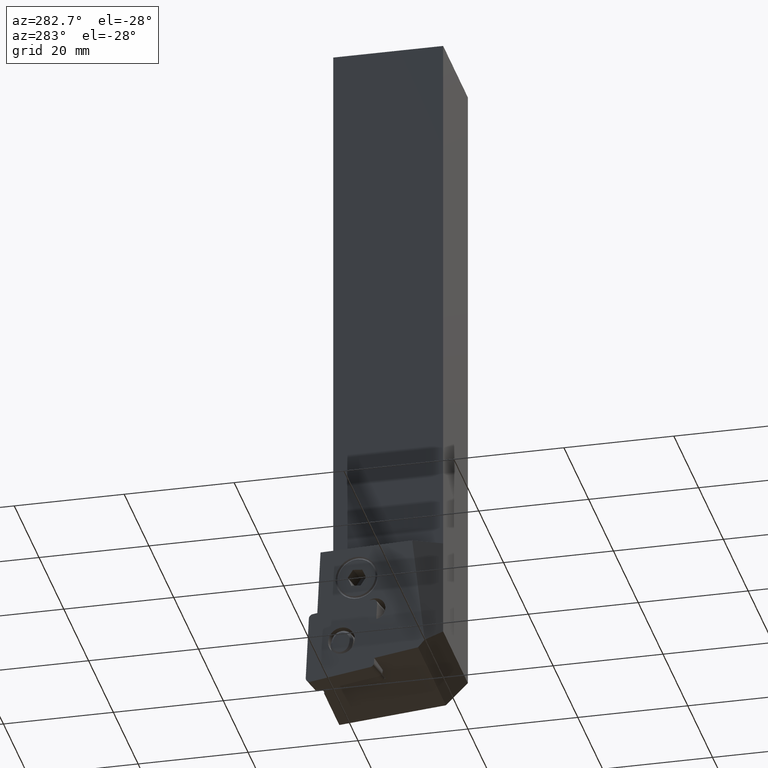
[diagram: clean part render]
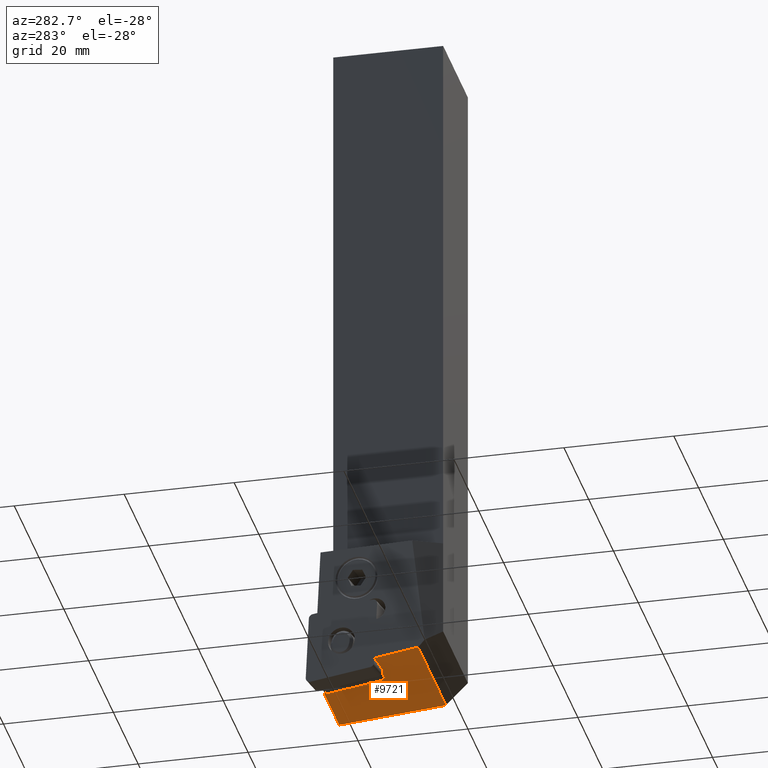
[diagram: same view with one face highlighted and labeled with its STEP entity id]
A machine part, auxiliary view. The second image highlights one B-rep face of the part: STEP entity #9721.
In plain terms, the highlighted planar face has unit normal (0, -0.0872, -0.9962).
Its self-contained STEP definition (entity closure, byte-faithful):
#9315=CARTESIAN_POINT('',(-1.552067345341289,12.183136539610635,-122.41121863258657));
#9316=VERTEX_POINT('',#9315);
#9323=CARTESIAN_POINT('',(-2.487884384083899,4.0,-121.69459814909274));
#9324=VERTEX_POINT('',#9323);
#9325=CARTESIAN_POINT('',(-2.4878843840839,4.000000000000012,-121.69459814909273));
#9326=DIRECTION('',(0.113191049826486,0.989785158257595,-0.086678294469633));
#9327=VECTOR('',#9326,8.267588649254053);
#9328=LINE('',#9325,#9327);
#9329=EDGE_CURVE('',#9324,#9316,#9328,.T.);
#9411=CARTESIAN_POINT('',(19.999999999999996,4.000000000000005,-121.69459814909274));
#9412=VERTEX_POINT('',#9411);
#9413=CARTESIAN_POINT('',(-2.4878843840839,4.000000000000006,-121.69459814909274));
#9414=DIRECTION('',(1.0,0.0,0.0));
#9415=VECTOR('',#9414,22.487884384083895);
#9416=LINE('',#9413,#9415);
#9417=EDGE_CURVE('',#9324,#9412,#9416,.T.);
#9608=CARTESIAN_POINT('',(6.451140724832801,11.968861556889186,-122.39245396442109));
#9609=VERTEX_POINT('',#9608);
#9616=CARTESIAN_POINT('',(3.611143368875496,12.243223722545299,-122.41648063767202));
#9617=VERTEX_POINT('',#9616);
#9618=CARTESIAN_POINT('',(6.451140724832801,11.968861556889193,-122.39245396442111));
#9619=DIRECTION('',(-0.995330714854204,0.096155403067054,-0.00842060145311));
#9620=VECTOR('',#9619,2.853320322153737);
#9621=LINE('',#9618,#9620);
#9622=EDGE_CURVE('',#9609,#9617,#9621,.T.);
#9664=CARTESIAN_POINT('',(7.75868310988862,23.402504486298191,-123.39373051461769));
#9665=VERTEX_POINT('',#9664);
#9672=CARTESIAN_POINT('',(7.758683109888622,23.402504486298195,-123.39373051461767));
#9673=DIRECTION('',(-0.113191049826486,-0.989785158257596,0.086678294469632));
#9674=VECTOR('',#9673,11.551641115266509);
#9675=LINE('',#9672,#9674);
#9676=EDGE_CURVE('',#9665,#9609,#9675,.T.);
#9682=CARTESIAN_POINT('',(1.592273E-016,-0.547914251737083,-121.29632439498971));
#9683=DIRECTION('',(2.542436E-017,-0.087238958185049,-0.996187414182084));
#9684=DIRECTION('',(-1.0,0.0,0.0));
#9685=AXIS2_PLACEMENT_3D('',#9682,#9683,#9684);
#9686=PLANE('',#9685);
#9687=ORIENTED_EDGE('',*,*,#9417,.F.);
#9688=ORIENTED_EDGE('',*,*,#9329,.T.);
#9689=CARTESIAN_POINT('',(3.547927906553891,11.69044391818594,-122.3680721418895));
#9690=VERTEX_POINT('',#9689);
#9691=CARTESIAN_POINT('',(3.54792790655389,11.690443918185935,-122.3680721418895));
#9692=DIRECTION('',(-0.995330714854204,0.096155403067053,-0.008420601453113));
#9693=VECTOR('',#9692,5.123920296825391);
#9694=LINE('',#9691,#9693);
#9695=EDGE_CURVE('',#9690,#9316,#9694,.T.);
#9696=ORIENTED_EDGE('',*,*,#9695,.F.);
#9697=CARTESIAN_POINT('',(3.611143368875496,12.243223722545297,-122.41648063767201));
#9698=DIRECTION('',(-0.113191049826487,-0.989785158257597,0.086678294469618));
#9699=VECTOR('',#9698,0.558484636537148);
#9700=LINE('',#9697,#9699);
#9701=EDGE_CURVE('',#9617,#9690,#9700,.T.);
#9702=ORIENTED_EDGE('',*,*,#9701,.F.);
#9703=ORIENTED_EDGE('',*,*,#9622,.F.);
#9704=ORIENTED_EDGE('',*,*,#9676,.F.);
#9705=CARTESIAN_POINT('',(19.999999999999996,23.402504486298191,-123.39373051461769));
#9706=VERTEX_POINT('',#9705);
#9707=CARTESIAN_POINT('',(7.75868310988862,23.402504486298191,-123.39373051461769));
#9708=DIRECTION('',(1.0,0.0,0.0));
#9709=VECTOR('',#9708,12.241316890111378);
#9710=LINE('',#9707,#9709);
#9711=EDGE_CURVE('',#9665,#9706,#9710,.T.);
#9712=ORIENTED_EDGE('',*,*,#9711,.T.);
#9713=CARTESIAN_POINT('',(19.999999999999996,23.402504486298195,-123.39373051461769));
#9714=DIRECTION('',(0.0,-0.996187414182084,0.087238958185048));
#9715=VECTOR('',#9714,19.476761310248577);
#9716=LINE('',#9713,#9715);
#9717=EDGE_CURVE('',#9706,#9412,#9716,.T.);
#9718=ORIENTED_EDGE('',*,*,#9717,.T.);
#9719=EDGE_LOOP('',(#9687,#9688,#9696,#9702,#9703,#9704,#9712,#9718));
#9720=FACE_OUTER_BOUND('',#9719,.T.);
#9721=ADVANCED_FACE('',(#9720),#9686,.T.);